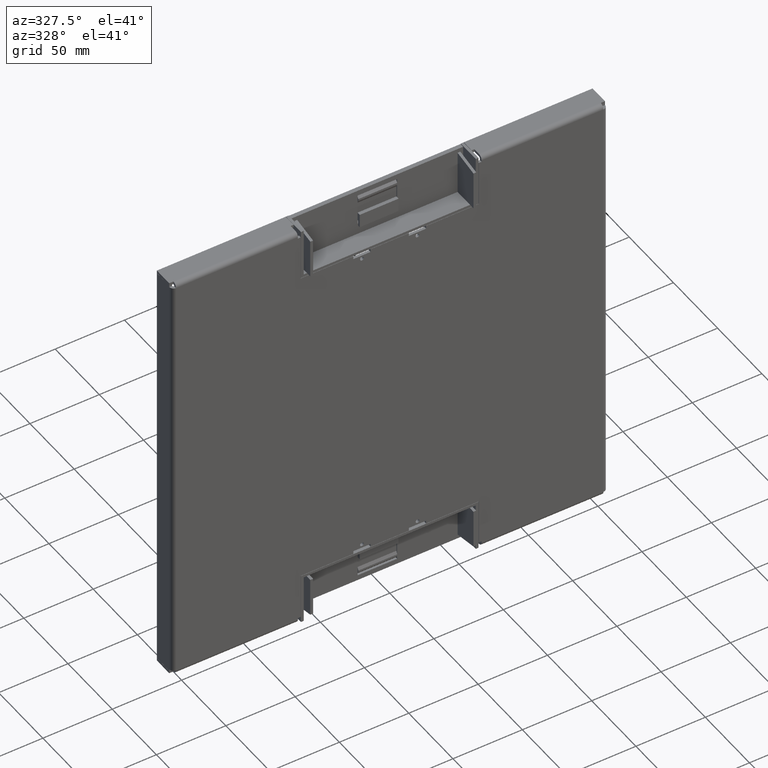
[diagram: clean part render]
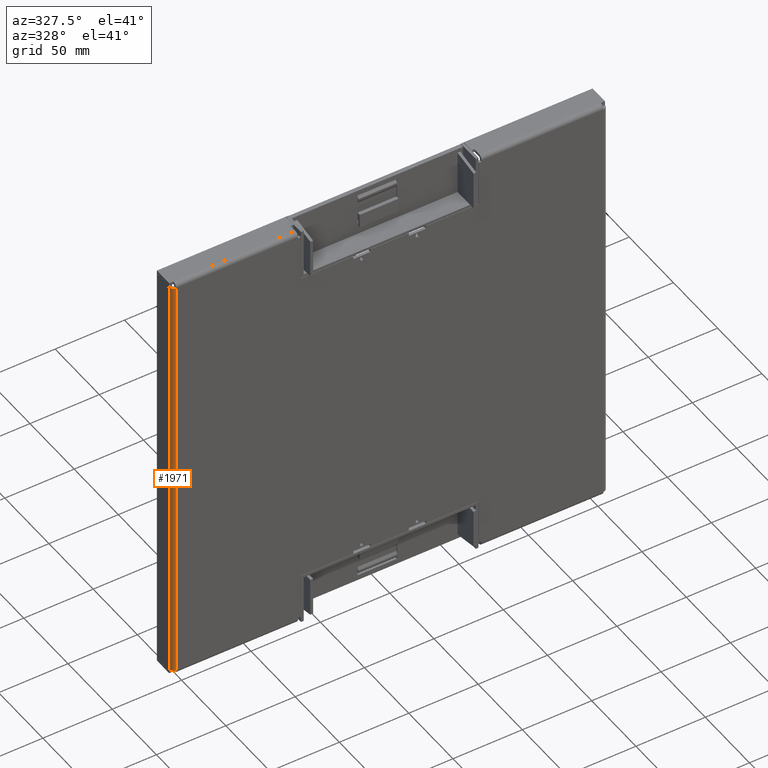
[diagram: same view with one face highlighted and labeled with its STEP entity id]
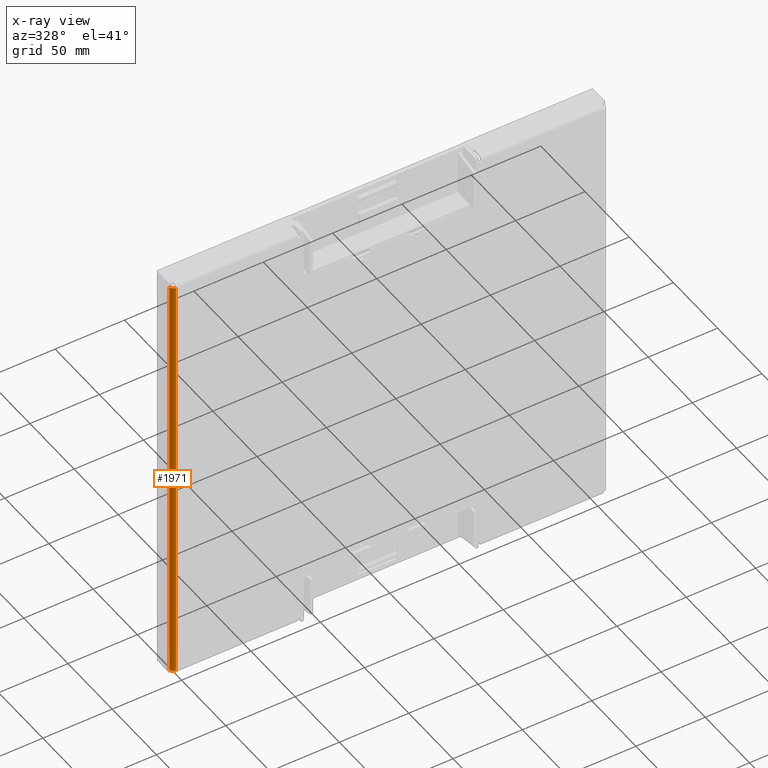
[diagram: x-ray of the same camera — body ghosted, the highlighted face saturated]
A machine part, auxiliary view. The second image highlights one B-rep face of the part: STEP entity #1971.
The next image is the same camera in x-ray: the body ghosted, the highlighted face saturated — about 0% of this face is hidden behind the body in this view.
In plain terms, the highlighted cylindrical surface (edge-blend (fillet) strip) has radius 3 mm, axis along (0, 0, 1).
Its self-contained STEP definition (entity closure, byte-faithful):
#444=CARTESIAN_POINT('',(1.54E2,3.E0,-1.54E2));
#445=DIRECTION('',(0.E0,0.E0,1.E0));
#446=DIRECTION('',(0.E0,-1.E0,0.E0));
#447=AXIS2_PLACEMENT_3D('',#444,#445,#446);
#458=DIRECTION('',(0.E0,0.E0,-1.E0));
#459=VECTOR('',#458,3.08E2);
#460=CARTESIAN_POINT('',(1.57E2,3.E0,1.54E2));
#461=LINE('',#460,#459);
#462=DIRECTION('',(0.E0,0.E0,1.E0));
#463=VECTOR('',#462,3.08E2);
#464=CARTESIAN_POINT('',(1.54E2,0.E0,-1.54E2));
#465=LINE('',#464,#463);
#1366=CARTESIAN_POINT('',(1.54E2,3.E0,1.54E2));
#1367=DIRECTION('',(0.E0,0.E0,-1.E0));
#1368=DIRECTION('',(1.E0,0.E0,0.E0));
#1369=AXIS2_PLACEMENT_3D('',#1366,#1367,#1368);
#1512=CARTESIAN_POINT('',(1.54E2,0.E0,1.54E2));
#1513=VERTEX_POINT('',#1512);
#1514=CARTESIAN_POINT('',(1.54E2,0.E0,-1.54E2));
#1515=VERTEX_POINT('',#1514);
#1628=CARTESIAN_POINT('',(1.57E2,3.E0,-1.54E2));
#1629=VERTEX_POINT('',#1628);
#1632=CARTESIAN_POINT('',(1.57E2,3.E0,1.54E2));
#1633=VERTEX_POINT('',#1632);
#1958=CARTESIAN_POINT('',(1.54E2,3.E0,-1.54E2));
#1959=DIRECTION('',(0.E0,0.E0,-1.E0));
#1960=DIRECTION('',(1.E0,0.E0,0.E0));
#1961=AXIS2_PLACEMENT_3D('',#1958,#1959,#1960);
#1962=CYLINDRICAL_SURFACE('',#1961,3.E0);
#1964=ORIENTED_EDGE('',*,*,#1963,.T.);
#1965=ORIENTED_EDGE('',*,*,#1948,.F.);
#1966=ORIENTED_EDGE('',*,*,#1853,.T.);
#1968=ORIENTED_EDGE('',*,*,#1967,.F.);
#1969=EDGE_LOOP('',(#1964,#1965,#1966,#1968));
#1970=FACE_OUTER_BOUND('',#1969,.F.);
#448=CIRCLE('',#447,3.E0);
#1370=CIRCLE('',#1369,3.E0);
#1853=EDGE_CURVE('',#1515,#1513,#465,.T.);
#1948=EDGE_CURVE('',#1515,#1629,#448,.T.);
#1963=EDGE_CURVE('',#1633,#1629,#461,.T.);
#1967=EDGE_CURVE('',#1633,#1513,#1370,.T.);
#1971=ADVANCED_FACE('',(#1970),#1962,.T.);